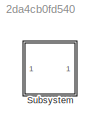
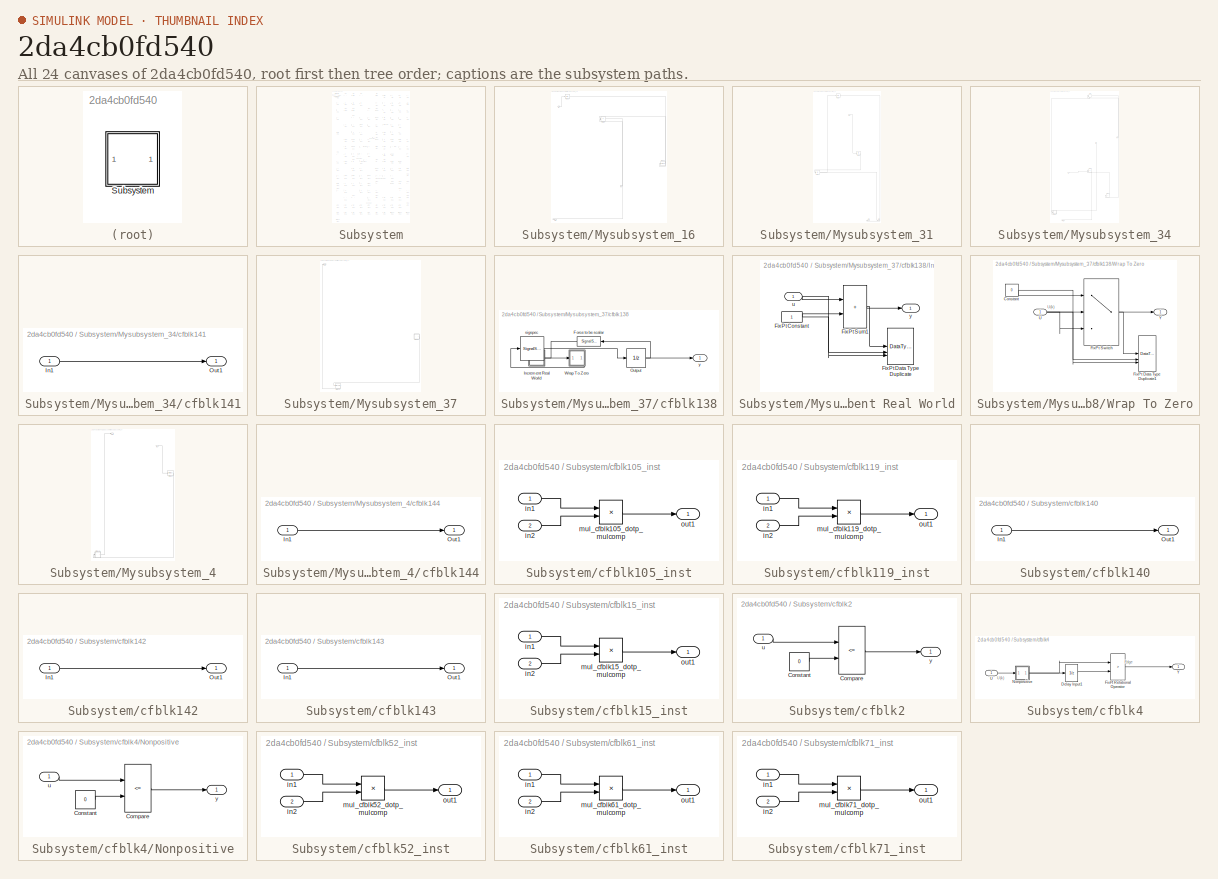
[diagram: thumbnail index - all 24 canvases of the model, root first then tree order]
MODEL slx_2da4cb0fd540
KIND model
CONFIG AbsTol = auto
CONFIG EnableMultiTasking = off
CONFIG FixedStep = auto
CONFIG MaxStep = auto
CONFIG MinStep = auto
CONFIG RelTol = 1e-3
CONFIG SampleTimeConstraint = Unconstrained
CONFIG SolverName = VariableStepAuto
CONFIG StartTime = 0.0
CONFIG StopTime = 10.0
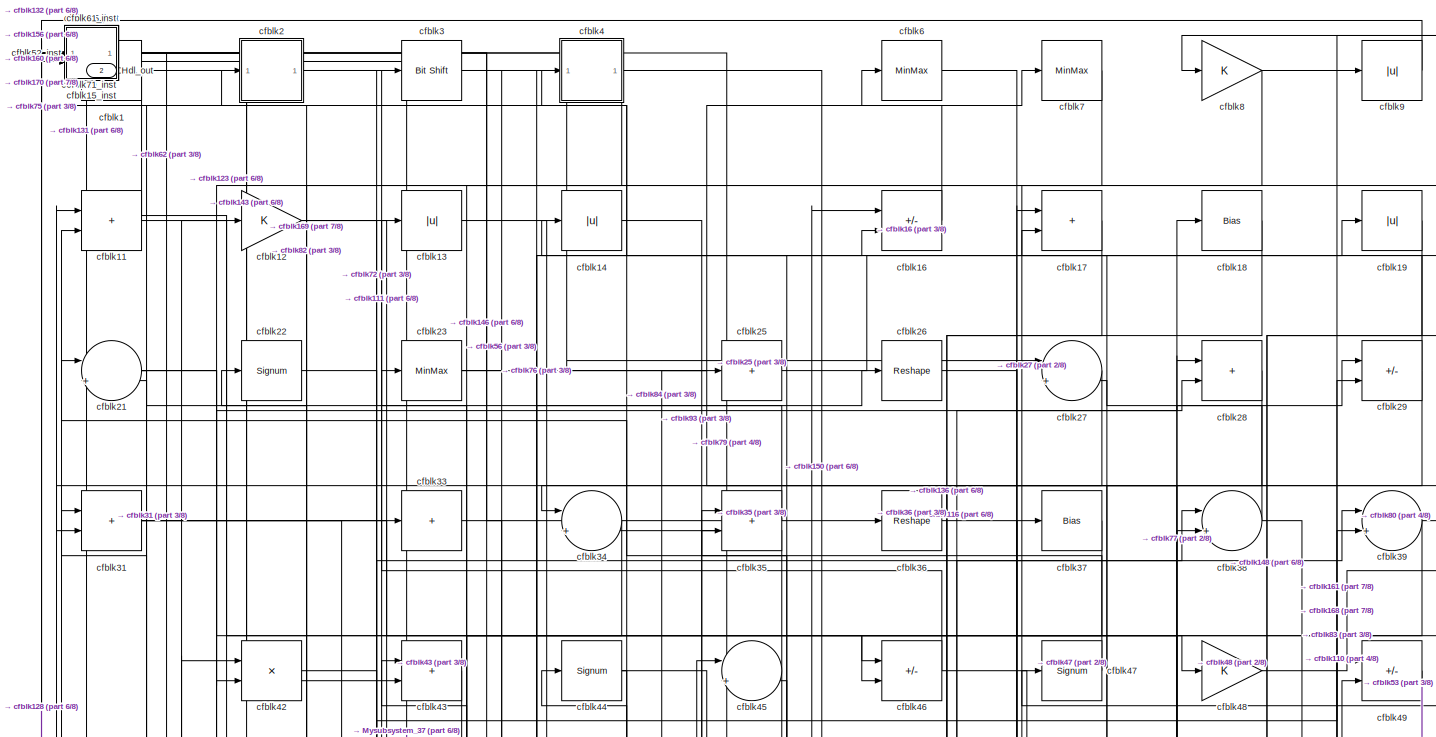
[diagram: Subsystem - part 1/8, full width, top band]
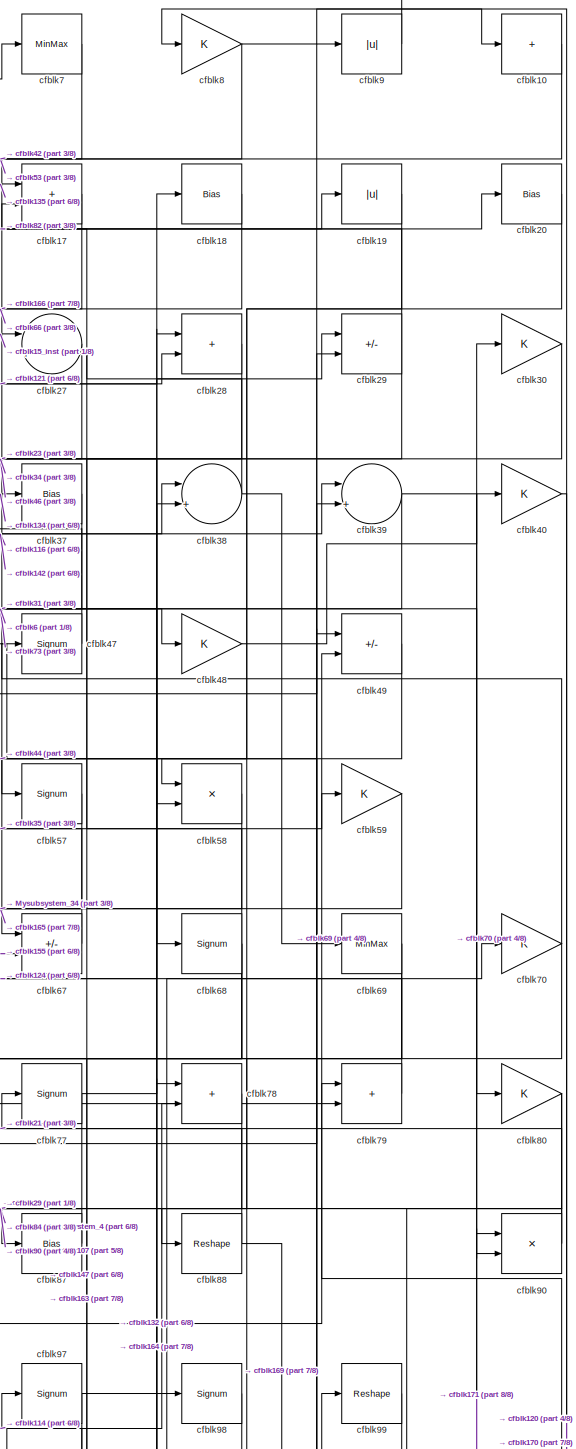
[diagram: Subsystem - part 2/8, top right region]
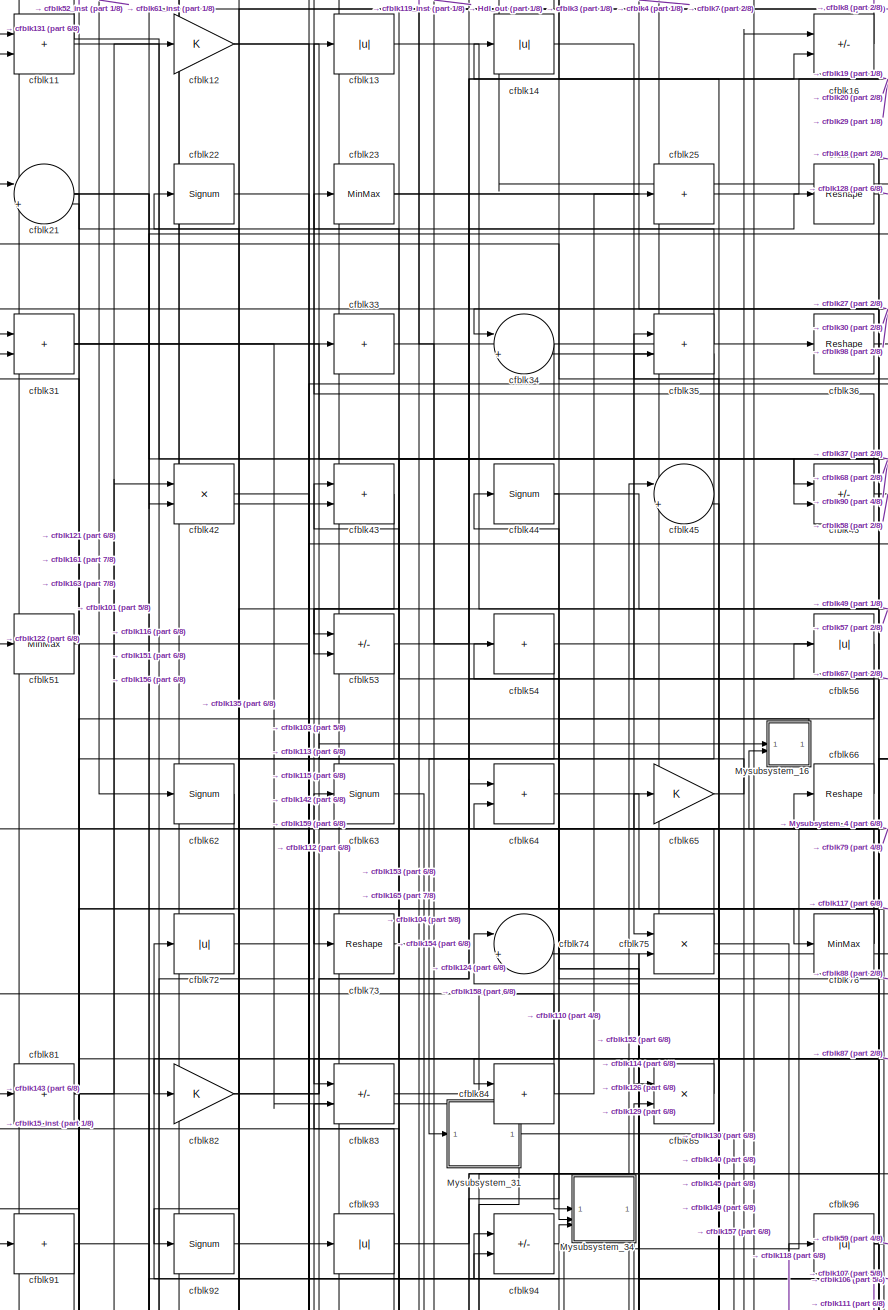
[diagram: Subsystem - part 3/8, top left region]
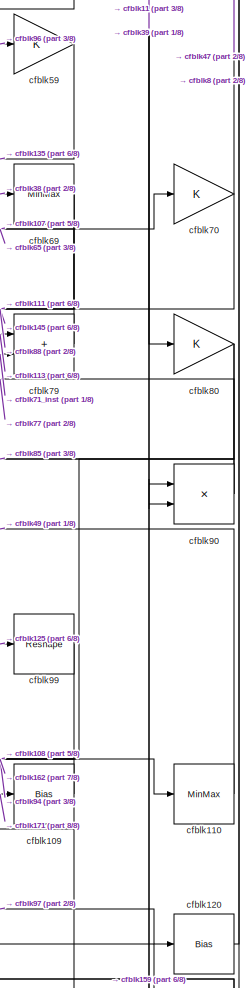
[diagram: Subsystem - part 4/8, middle right region]
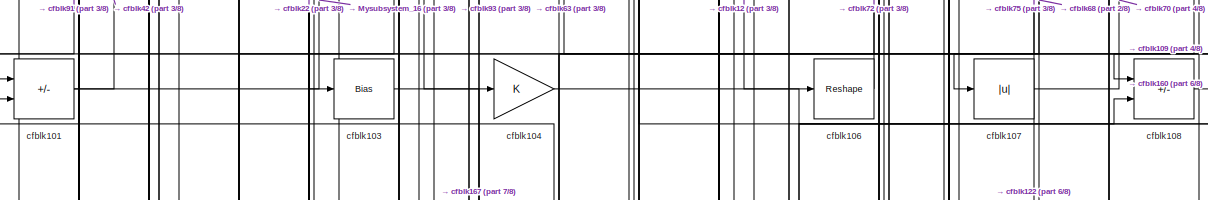
[diagram: Subsystem - part 5/8, full width, middle band]
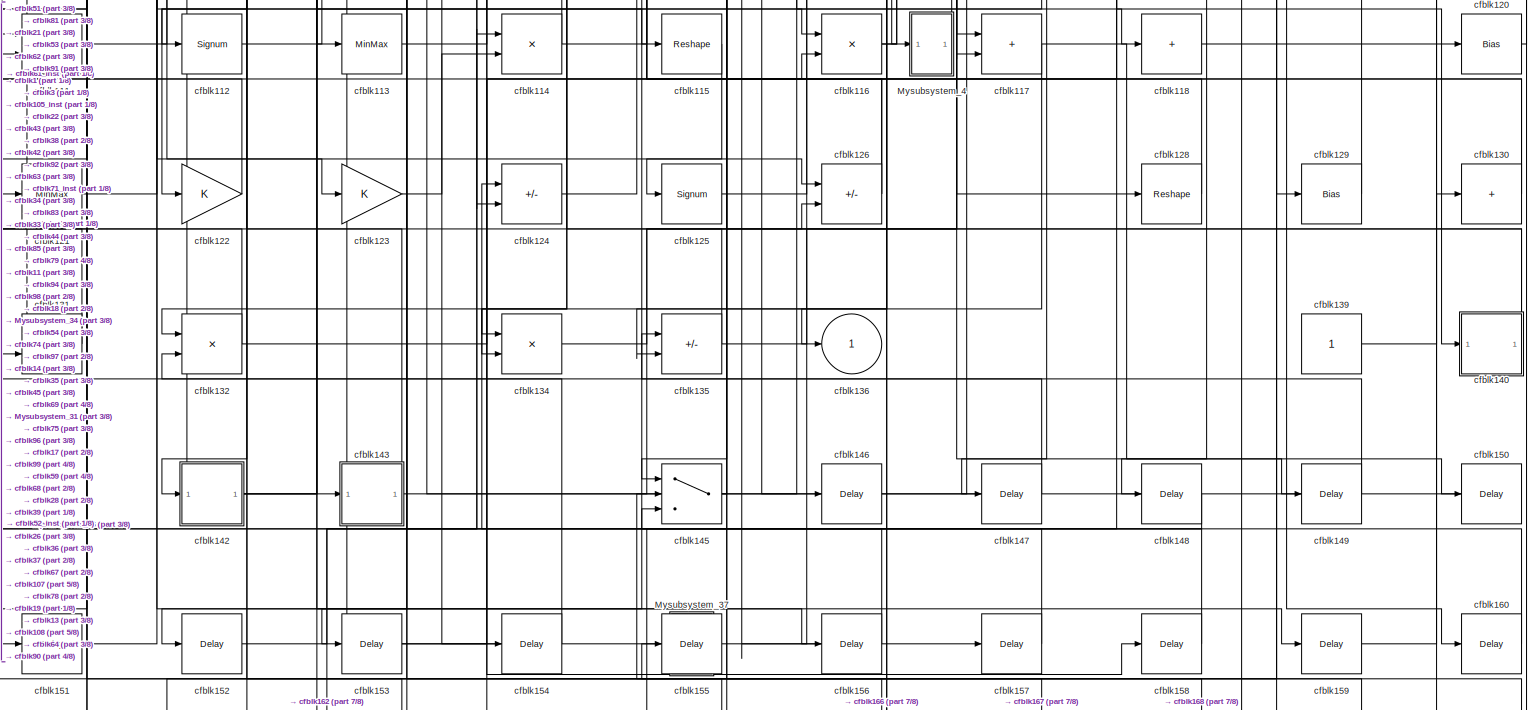
[diagram: Subsystem - part 6/8, full width, bottom band]
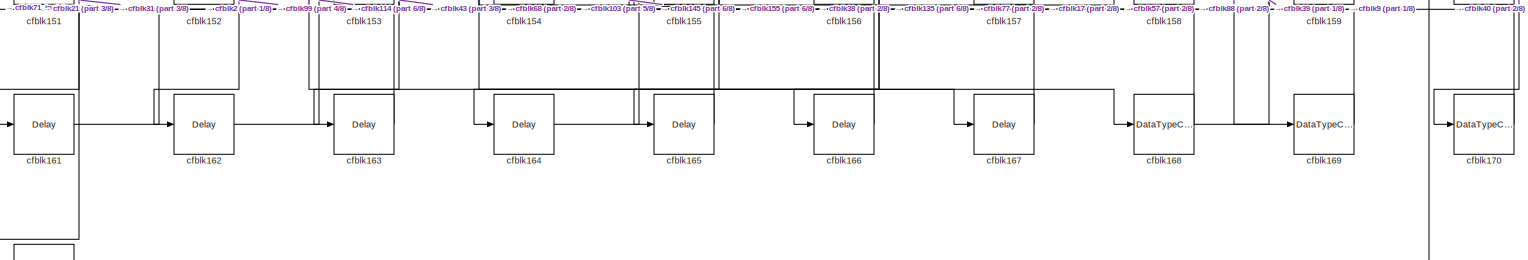
[diagram: Subsystem - part 7/8, full width, bottom band]
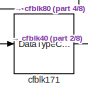
[diagram: Subsystem - part 8/8, bottom left region]
BLOCK [SubSystem] Subsystem
BLOCK [Outport] Subsystem/Hdl_out
  OutDataTypeStr = uint8
  Port = 2
  SampleTime = 1
BLOCK [SubSystem] Subsystem/Mysubsystem_16
BLOCK [Inport] Subsystem/Mysubsystem_16/In1
  OutDataTypeStr = uint8
  PortDimensions = 1
  SampleTime = 1
BLOCK [Inport] Subsystem/Mysubsystem_16/In2
  OutDataTypeStr = uint8
  Port = 2
  PortDimensions = 1
  SampleTime = 1
BLOCK [Outport] Subsystem/Mysubsystem_16/Out1
  SampleTime = 1
BLOCK [Signum] Subsystem/Mysubsystem_16/cfblk100
BLOCK [Bias] Subsystem/Mysubsystem_16/cfblk32
  Bias = 0.0
  SaturateOnIntegerOverflow = off
BLOCK [Product] Subsystem/Mysubsystem_16/cfblk55
  Inputs = */
  RndMeth = Zero
  SaturateOnIntegerOverflow = on
BLOCK [SubSystem] Subsystem/Mysubsystem_31
BLOCK [Inport] Subsystem/Mysubsystem_31/In1
  OutDataTypeStr = uint8
  PortDimensions = 1
  SampleTime = 1
BLOCK [Outport] Subsystem/Mysubsystem_31/Out2
  SampleTime = 1
BLOCK [Outport] Subsystem/Mysubsystem_31/Out3
  Port = 2
  SampleTime = 1
BLOCK [Abs] Subsystem/Mysubsystem_31/cfblk102
  SaturateOnIntegerOverflow = off
BLOCK [Bias] Subsystem/Mysubsystem_31/cfblk24
  Bias = 0.0
  SaturateOnIntegerOverflow = off
BLOCK [Abs] Subsystem/Mysubsystem_31/cfblk86
  SaturateOnIntegerOverflow = off
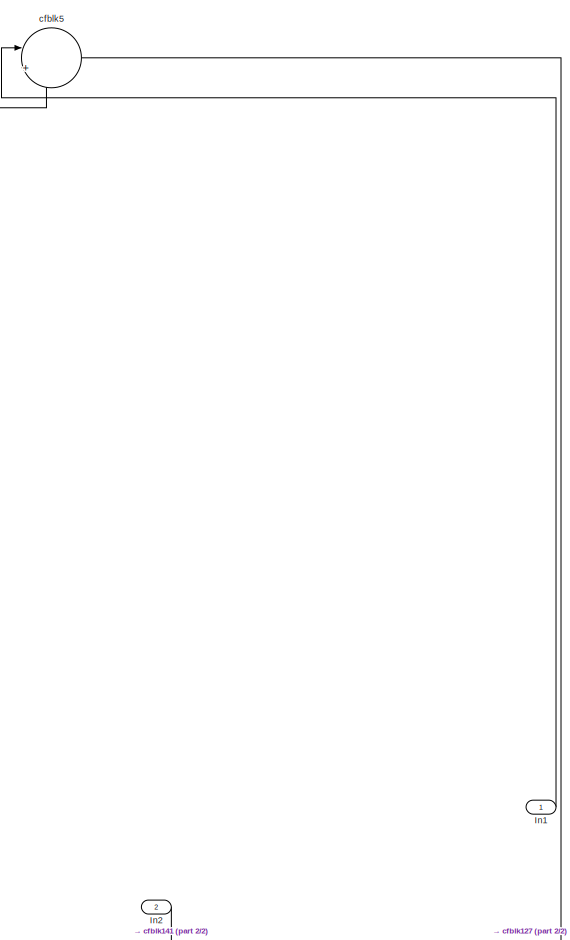
[diagram: Subsystem/Mysubsystem_34 - part 1/2, top right region]
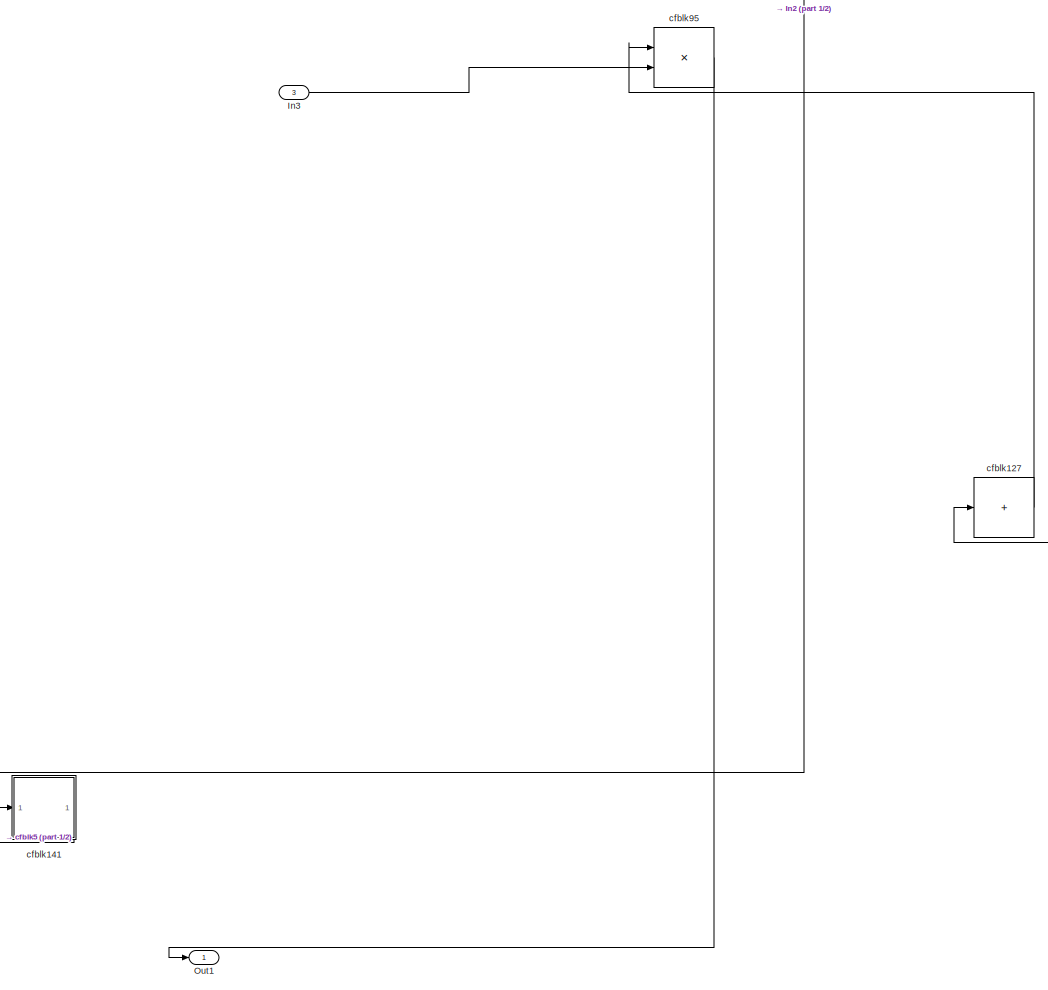
[diagram: Subsystem/Mysubsystem_34 - part 2/2, full width, bottom band]
BLOCK [SubSystem] Subsystem/Mysubsystem_34
BLOCK [Inport] Subsystem/Mysubsystem_34/In1
  OutDataTypeStr = uint8
  PortDimensions = 1
  SampleTime = 1
BLOCK [Inport] Subsystem/Mysubsystem_34/In2
  OutDataTypeStr = uint8
  Port = 2
  PortDimensions = 1
  SampleTime = 1
BLOCK [Inport] Subsystem/Mysubsystem_34/In3
  OutDataTypeStr = uint8
  Port = 3
  PortDimensions = 1
  SampleTime = 1
BLOCK [Outport] Subsystem/Mysubsystem_34/Out1
  SampleTime = 1
BLOCK [Sum] Subsystem/Mysubsystem_34/cfblk127
  IconShape = rectangular
  Inputs = +
BLOCK [SubSystem] Subsystem/Mysubsystem_34/cfblk141
BLOCK [Inport] Subsystem/Mysubsystem_34/cfblk141/In1
  OutDataTypeStr = uint8
  PortDimensions = 1
  SampleTime = 1
BLOCK [Outport] Subsystem/Mysubsystem_34/cfblk141/Out1
  SampleTime = 1
BLOCK [Sum] Subsystem/Mysubsystem_34/cfblk5
  Inputs = |++
BLOCK [Product] Subsystem/Mysubsystem_34/cfblk95
  Inputs = */
  RndMeth = Zero
  SaturateOnIntegerOverflow = on
BLOCK [SubSystem] Subsystem/Mysubsystem_37
BLOCK [Outport] Subsystem/Mysubsystem_37/Out1
  SampleTime = 1
BLOCK [SubSystem] Subsystem/Mysubsystem_37/cfblk138
BLOCK [SignalSpecification] Subsystem/Mysubsystem_37/cfblk138/Force to be scalar
  Dimensions = 1
  DisableCoverage = on
BLOCK [SubSystem] Subsystem/Mysubsystem_37/cfblk138/Increment Real World
BLOCK [Constant] Subsystem/Mysubsystem_37/cfblk138/Increment Real World/FixPt Constant
  DisableCoverage = on
  OutDataTypeStr = Inherit: Inherit via back propagation
  SampleTime = -1
BLOCK [DataTypeDuplicate] Subsystem/Mysubsystem_37/cfblk138/Increment Real World/FixPt Data Type Duplicate
  DisableCoverage = on
  NumInputPorts = 3
BLOCK [Sum] Subsystem/Mysubsystem_37/cfblk138/Increment Real World/FixPt Sum1
  IconShape = rectangular
  InputSameDT = on
  LockScale = on
  OutDataTypeStr = Inherit: Inherit via back propagation
BLOCK [Inport] Subsystem/Mysubsystem_37/cfblk138/Increment Real World/u
  OutDataTypeStr = uint16
  SampleTime = 1
BLOCK [Outport] Subsystem/Mysubsystem_37/cfblk138/Increment Real World/y
  SampleTime = 1
BLOCK [UnitDelay] Subsystem/Mysubsystem_37/cfblk138/Output
  HasFrameUpgradeWarning = on
  InitialCondition = 0.0
  SampleTime = tsamp
BLOCK [SubSystem] Subsystem/Mysubsystem_37/cfblk138/Wrap To Zero
BLOCK [Constant] Subsystem/Mysubsystem_37/cfblk138/Wrap To Zero/Constant
  DisableCoverage = on
  OutDataTypeStr = Inherit: Inherit via back propagation
  SampleTime = -1
  Value = 0
BLOCK [DataTypeDuplicate] Subsystem/Mysubsystem_37/cfblk138/Wrap To Zero/FixPt Data Type Duplicate1
  DisableCoverage = on
  NumInputPorts = 3
BLOCK [Switch] Subsystem/Mysubsystem_37/cfblk138/Wrap To Zero/FixPt Switch
  Criteria = u2 > Threshold
  InputSameDT = off
  OutDataTypeStr = Inherit: Inherit via back propagation
  SaturateOnIntegerOverflow = off
  Threshold = Threshold
  ZeroCross = off
BLOCK [Inport] Subsystem/Mysubsystem_37/cfblk138/Wrap To Zero/U
  OutDataTypeStr = uint16
  SampleTime = 1
BLOCK [Outport] Subsystem/Mysubsystem_37/cfblk138/Wrap To Zero/Y
  SampleTime = 1
BLOCK [SignalSpecification] Subsystem/Mysubsystem_37/cfblk138/sigspec
  Dimensions = 1
  OutDataTypeStr = uint16
BLOCK [Outport] Subsystem/Mysubsystem_37/cfblk138/y
  SampleTime = 1
BLOCK [DataTypeConversion] Subsystem/Mysubsystem_37/cfblk172
  OutDataTypeStr = uint8
  RndMeth = Floor
  SaturateOnIntegerOverflow = off
BLOCK [SubSystem] Subsystem/Mysubsystem_4
BLOCK [Inport] Subsystem/Mysubsystem_4/In1
  OutDataTypeStr = uint8
  PortDimensions = 1
  SampleTime = 1
BLOCK [Outport] Subsystem/Mysubsystem_4/Out1
  SampleTime = 1
BLOCK [SubSystem] Subsystem/Mysubsystem_4/cfblk144
BLOCK [Inport] Subsystem/Mysubsystem_4/cfblk144/In1
  OutDataTypeStr = uint8
  PortDimensions = 1
  SampleTime = 1
BLOCK [Outport] Subsystem/Mysubsystem_4/cfblk144/Out1
  SampleTime = 1
BLOCK [MinMax] Subsystem/Mysubsystem_4/cfblk89
BLOCK [Reference] Subsystem/cfblk1  REF=simulink/Logic and Bit
Operations/Detect
Decrease
  LibrarySourceBlock = hdlsllib/Logic and Bit\nOperations/Detect\nDecrease
  SourceBlock = simulink/Logic and Bit\nOperations/Detect\nDecrease
  SourceType = Detect Decrease
BLOCK [Sum] Subsystem/cfblk10
  IconShape = rectangular
  Inputs = +
  OutDataTypeStr = uint8
BLOCK [Sum] Subsystem/cfblk101
  IconShape = rectangular
  Inputs = +-
  OutDataTypeStr = uint8
BLOCK [Bias] Subsystem/cfblk103
  Bias = 0.0
  SaturateOnIntegerOverflow = off
BLOCK [Gain] Subsystem/cfblk104
  OutDataTypeStr = uint8
BLOCK [SubSystem] Subsystem/cfblk105_inst
BLOCK [Inport] Subsystem/cfblk105_inst/in1
  OutDataTypeStr = uint8
  SampleTime = 1
BLOCK [Inport] Subsystem/cfblk105_inst/in2
  OutDataTypeStr = uint8
  Port = 2
  SampleTime = 1
BLOCK [Product] Subsystem/cfblk105_inst/mul_cfblk105_dotp_mulcomp
  Inputs = **
  OutDataTypeStr = uint8
  SampleTime = 1
BLOCK [Outport] Subsystem/cfblk105_inst/out1
  OutDataTypeStr = uint8
  SampleTime = 1
BLOCK [Reshape] Subsystem/cfblk106
BLOCK [Abs] Subsystem/cfblk107
  OutDataTypeStr = uint8
  SaturateOnIntegerOverflow = off
BLOCK [Sum] Subsystem/cfblk108
  IconShape = rectangular
  Inputs = +-
  OutDataTypeStr = uint8
BLOCK [Bias] Subsystem/cfblk109
  Bias = 0.0
  SaturateOnIntegerOverflow = off
BLOCK [Sum] Subsystem/cfblk11
  IconShape = rectangular
  OutDataTypeStr = uint8
BLOCK [MinMax] Subsystem/cfblk110
  OutDataTypeStr = uint8
BLOCK [Product] Subsystem/cfblk111
  Inputs = */
  OutDataTypeStr = uint8
  RndMeth = Zero
  SaturateOnIntegerOverflow = on
BLOCK [Signum] Subsystem/cfblk112
BLOCK [MinMax] Subsystem/cfblk113
  OutDataTypeStr = uint8
BLOCK [Product] Subsystem/cfblk114
  Inputs = */
  OutDataTypeStr = uint8
  RndMeth = Zero
  SaturateOnIntegerOverflow = on
BLOCK [Reshape] Subsystem/cfblk115
BLOCK [Product] Subsystem/cfblk116
  Inputs = */
  OutDataTypeStr = uint8
  RndMeth = Zero
  SaturateOnIntegerOverflow = on
BLOCK [Sum] Subsystem/cfblk117
  IconShape = rectangular
  OutDataTypeStr = uint8
BLOCK [Sum] Subsystem/cfblk118
  IconShape = rectangular
  Inputs = +
  OutDataTypeStr = uint8
BLOCK [SubSystem] Subsystem/cfblk119_inst
BLOCK [Inport] Subsystem/cfblk119_inst/in1
  OutDataTypeStr = uint8
  SampleTime = 1
BLOCK [Inport] Subsystem/cfblk119_inst/in2
  OutDataTypeStr = uint8
  Port = 2
  SampleTime = 1
BLOCK [Product] Subsystem/cfblk119_inst/mul_cfblk119_dotp_mulcomp
  Inputs = **
  OutDataTypeStr = uint8
  SampleTime = 1
BLOCK [Outport] Subsystem/cfblk119_inst/out1
  OutDataTypeStr = uint8
  SampleTime = 1
BLOCK [Gain] Subsystem/cfblk12
  OutDataTypeStr = uint8
BLOCK [Bias] Subsystem/cfblk120
  Bias = 0.0
  SaturateOnIntegerOverflow = off
BLOCK [MinMax] Subsystem/cfblk121
  OutDataTypeStr = uint8
BLOCK [Gain] Subsystem/cfblk122
  OutDataTypeStr = uint8
BLOCK [Gain] Subsystem/cfblk123
  OutDataTypeStr = uint8
BLOCK [Sum] Subsystem/cfblk124
  IconShape = rectangular
  Inputs = +-
  OutDataTypeStr = uint8
BLOCK [Signum] Subsystem/cfblk125
BLOCK [Sum] Subsystem/cfblk126
  IconShape = rectangular
  Inputs = +-
  OutDataTypeStr = uint8
BLOCK [Reshape] Subsystem/cfblk128
BLOCK [Bias] Subsystem/cfblk129
  Bias = 0.0
  SaturateOnIntegerOverflow = off
BLOCK [Abs] Subsystem/cfblk13
  OutDataTypeStr = uint8
  SaturateOnIntegerOverflow = off
BLOCK [Sum] Subsystem/cfblk130
  IconShape = rectangular
  Inputs = +
  OutDataTypeStr = uint8
BLOCK [Sum] Subsystem/cfblk131
  IconShape = rectangular
  OutDataTypeStr = uint8
BLOCK [Product] Subsystem/cfblk132
  Inputs = */
  OutDataTypeStr = uint8
  RndMeth = Zero
  SaturateOnIntegerOverflow = on
BLOCK [Product] Subsystem/cfblk134
  Inputs = */
  OutDataTypeStr = uint8
  RndMeth = Zero
  SaturateOnIntegerOverflow = on
BLOCK [Sum] Subsystem/cfblk135
  IconShape = rectangular
  Inputs = +-
  OutDataTypeStr = uint8
BLOCK [Outport] Subsystem/cfblk136
  OutDataTypeStr = uint8
  SampleTime = 1
  VectorParamsAs1DForOutWhenUnconnected = off
BLOCK [Constant] Subsystem/cfblk139
  OutDataTypeStr = uint8
  SampleTime = -1
BLOCK [Abs] Subsystem/cfblk14
  OutDataTypeStr = uint8
  SaturateOnIntegerOverflow = off
BLOCK [SubSystem] Subsystem/cfblk140
BLOCK [Inport] Subsystem/cfblk140/In1
  OutDataTypeStr = uint8
  PortDimensions = 1
  SampleTime = 1
BLOCK [Outport] Subsystem/cfblk140/Out1
  SampleTime = 1
BLOCK [SubSystem] Subsystem/cfblk142
BLOCK [Inport] Subsystem/cfblk142/In1
  OutDataTypeStr = uint8
  PortDimensions = 1
  SampleTime = 1
BLOCK [Outport] Subsystem/cfblk142/Out1
  SampleTime = 1
BLOCK [SubSystem] Subsystem/cfblk143
BLOCK [Inport] Subsystem/cfblk143/In1
  OutDataTypeStr = uint8
  PortDimensions = 1
  SampleTime = 1
BLOCK [Outport] Subsystem/cfblk143/Out1
  SampleTime = 1
BLOCK [Switch] Subsystem/cfblk145
  InputSameDT = off
  OutDataTypeStr = uint8
  SaturateOnIntegerOverflow = off
BLOCK [Delay] Subsystem/cfblk146
  InputPortMap = u0
  SampleTime = 1
BLOCK [Delay] Subsystem/cfblk147
  InputPortMap = u0
  SampleTime = 1
BLOCK [Delay] Subsystem/cfblk148
  InputPortMap = u0
  SampleTime = 1
BLOCK [Delay] Subsystem/cfblk149
  InputPortMap = u0
  SampleTime = 1
BLOCK [Delay] Subsystem/cfblk150
  InputPortMap = u0
  SampleTime = 1
BLOCK [Delay] Subsystem/cfblk151
  InputPortMap = u0
  SampleTime = 1
BLOCK [Delay] Subsystem/cfblk152
  InputPortMap = u0
  SampleTime = 1
BLOCK [Delay] Subsystem/cfblk153
  InputPortMap = u0
  SampleTime = 1
BLOCK [Delay] Subsystem/cfblk154
  InputPortMap = u0
  SampleTime = 1
BLOCK [Delay] Subsystem/cfblk155
  InputPortMap = u0
  SampleTime = 1
BLOCK [Delay] Subsystem/cfblk156
  InputPortMap = u0
  SampleTime = 1
BLOCK [Delay] Subsystem/cfblk157
  InputPortMap = u0
  SampleTime = 1
BLOCK [Delay] Subsystem/cfblk158
  InputPortMap = u0
  SampleTime = 1
BLOCK [Delay] Subsystem/cfblk159
  InputPortMap = u0
  SampleTime = 1
BLOCK [SubSystem] Subsystem/cfblk15_inst
BLOCK [Inport] Subsystem/cfblk15_inst/in1
  OutDataTypeStr = uint8
  SampleTime = 1
BLOCK [Inport] Subsystem/cfblk15_inst/in2
  OutDataTypeStr = uint8
  Port = 2
  SampleTime = 1
BLOCK [Product] Subsystem/cfblk15_inst/mul_cfblk15_dotp_mulcomp
  Inputs = **
  OutDataTypeStr = uint8
  SampleTime = 1
BLOCK [Outport] Subsystem/cfblk15_inst/out1
  OutDataTypeStr = uint8
  SampleTime = 1
BLOCK [Sum] Subsystem/cfblk16
  IconShape = rectangular
  Inputs = +-
  OutDataTypeStr = uint8
BLOCK [Delay] Subsystem/cfblk160
  InputPortMap = u0
  SampleTime = 1
BLOCK [Delay] Subsystem/cfblk161
  InputPortMap = u0
  SampleTime = 1
BLOCK [Delay] Subsystem/cfblk162
  InputPortMap = u0
  SampleTime = 1
BLOCK [Delay] Subsystem/cfblk163
  InputPortMap = u0
  SampleTime = 1
BLOCK [Delay] Subsystem/cfblk164
  InputPortMap = u0
  SampleTime = 1
BLOCK [Delay] Subsystem/cfblk165
  InputPortMap = u0
  SampleTime = 1
BLOCK [Delay] Subsystem/cfblk166
  InputPortMap = u0
  SampleTime = 1
BLOCK [Delay] Subsystem/cfblk167
  InputPortMap = u0
  SampleTime = 1
BLOCK [DataTypeConversion] Subsystem/cfblk168
  OutDataTypeStr = uint8
  RndMeth = Floor
  SaturateOnIntegerOverflow = off
BLOCK [DataTypeConversion] Subsystem/cfblk169
  OutDataTypeStr = uint8
  RndMeth = Floor
  SaturateOnIntegerOverflow = off
BLOCK [Sum] Subsystem/cfblk17
  IconShape = rectangular
  OutDataTypeStr = uint8
BLOCK [DataTypeConversion] Subsystem/cfblk170
  OutDataTypeStr = uint8
  RndMeth = Floor
  SaturateOnIntegerOverflow = off
BLOCK [DataTypeConversion] Subsystem/cfblk171
  OutDataTypeStr = uint8
  RndMeth = Floor
  SaturateOnIntegerOverflow = off
BLOCK [Bias] Subsystem/cfblk18
  Bias = 0.0
  SaturateOnIntegerOverflow = off
BLOCK [Abs] Subsystem/cfblk19
  OutDataTypeStr = uint8
  SaturateOnIntegerOverflow = off
BLOCK [SubSystem] Subsystem/cfblk2
BLOCK [RelationalOperator] Subsystem/cfblk2/Compare
  Operator = <=
  OutDataTypeStr = fixdt(0, 8)
BLOCK [Constant] Subsystem/cfblk2/Constant
  DisableCoverage = on
  OutDataTypeStr = Inherit: Inherit via back propagation
  PreserveConstantTs = on
  SampleTime = -1
  Value = 0
BLOCK [Inport] Subsystem/cfblk2/u
  OutDataTypeStr = uint8
  SampleTime = 1
BLOCK [Outport] Subsystem/cfblk2/y
  SampleTime = 1
BLOCK [Bias] Subsystem/cfblk20
  Bias = 0.0
  SaturateOnIntegerOverflow = off
BLOCK [Sum] Subsystem/cfblk21
  Inputs = |++
  OutDataTypeStr = uint8
BLOCK [Signum] Subsystem/cfblk22
BLOCK [MinMax] Subsystem/cfblk23
  OutDataTypeStr = uint8
BLOCK [Sum] Subsystem/cfblk25
  IconShape = rectangular
  Inputs = +
  OutDataTypeStr = uint8
BLOCK [Reshape] Subsystem/cfblk26
BLOCK [Sum] Subsystem/cfblk27
  Inputs = |++
  OutDataTypeStr = uint8
BLOCK [Sum] Subsystem/cfblk28
  IconShape = rectangular
  OutDataTypeStr = uint8
BLOCK [Sum] Subsystem/cfblk29
  IconShape = rectangular
  Inputs = +-
  OutDataTypeStr = uint8
BLOCK [Reference] Subsystem/cfblk3  REF=hdlsllib/Logic and Bit
Operations/Bit Shift
  SourceBlock = hdlsllib/Logic and Bit\nOperations/Bit Shift
  SourceType = Bit Shift
BLOCK [Gain] Subsystem/cfblk30
  OutDataTypeStr = uint8
BLOCK [Sum] Subsystem/cfblk31
  IconShape = rectangular
  OutDataTypeStr = uint8
BLOCK [Sum] Subsystem/cfblk33
  IconShape = rectangular
  Inputs = +
  OutDataTypeStr = uint8
BLOCK [Sum] Subsystem/cfblk34
  Inputs = |++
  OutDataTypeStr = uint8
BLOCK [Sum] Subsystem/cfblk35
  IconShape = rectangular
  OutDataTypeStr = uint8
BLOCK [Reshape] Subsystem/cfblk36
BLOCK [Bias] Subsystem/cfblk37
  Bias = 0.0
  SaturateOnIntegerOverflow = off
BLOCK [Sum] Subsystem/cfblk38
  Inputs = |++
  OutDataTypeStr = uint8
BLOCK [Sum] Subsystem/cfblk39
  Inputs = |++
  OutDataTypeStr = uint8
BLOCK [SubSystem] Subsystem/cfblk4
BLOCK [UnitDelay] Subsystem/cfblk4/Delay Input1
  Description = Store in Global RAM
  DisableCoverage = on
  HasFrameUpgradeWarning = on
  InitialCondition = vinit
  SampleTime = -1
BLOCK [RelationalOperator] Subsystem/cfblk4/FixPt Relational Operator
  InputSameDT = off
  Operator = >
  OutDataTypeStr = fixdt(0, 8)
  ZeroCross = off
BLOCK [SubSystem] Subsystem/cfblk4/Nonpositive
BLOCK [RelationalOperator] Subsystem/cfblk4/Nonpositive/Compare
  Operator = <=
  OutDataTypeStr = boolean
  ZeroCross = off
BLOCK [Constant] Subsystem/cfblk4/Nonpositive/Constant
  DisableCoverage = on
  OutDataTypeStr = Inherit: Inherit via back propagation
  PreserveConstantTs = on
  SampleTime = -1
  Value = 0
BLOCK [Inport] Subsystem/cfblk4/Nonpositive/u
  OutDataTypeStr = uint8
  SampleTime = 1
BLOCK [Outport] Subsystem/cfblk4/Nonpositive/y
  SampleTime = 1
BLOCK [Inport] Subsystem/cfblk4/U
  OutDataTypeStr = uint8
  SampleTime = 1
BLOCK [Outport] Subsystem/cfblk4/Y
  SampleTime = 1
BLOCK [Gain] Subsystem/cfblk40
  OutDataTypeStr = uint8
BLOCK [Product] Subsystem/cfblk42
  Inputs = */
  OutDataTypeStr = uint8
  RndMeth = Zero
  SaturateOnIntegerOverflow = on
BLOCK [Sum] Subsystem/cfblk43
  IconShape = rectangular
  OutDataTypeStr = uint8
BLOCK [Signum] Subsystem/cfblk44
BLOCK [Sum] Subsystem/cfblk45
  Inputs = |++
  OutDataTypeStr = uint8
BLOCK [Sum] Subsystem/cfblk46
  IconShape = rectangular
  Inputs = +-
  OutDataTypeStr = uint8
BLOCK [Signum] Subsystem/cfblk47
BLOCK [Gain] Subsystem/cfblk48
  OutDataTypeStr = uint8
BLOCK [Sum] Subsystem/cfblk49
  IconShape = rectangular
  Inputs = +-
  OutDataTypeStr = uint8
BLOCK [MinMax] Subsystem/cfblk51
  OutDataTypeStr = uint8
BLOCK [SubSystem] Subsystem/cfblk52_inst
BLOCK [Inport] Subsystem/cfblk52_inst/in1
  OutDataTypeStr = uint8
  SampleTime = 1
BLOCK [Inport] Subsystem/cfblk52_inst/in2
  OutDataTypeStr = uint8
  Port = 2
  SampleTime = 1
BLOCK [Product] Subsystem/cfblk52_inst/mul_cfblk52_dotp_mulcomp
  Inputs = **
  OutDataTypeStr = uint8
  SampleTime = 1
BLOCK [Outport] Subsystem/cfblk52_inst/out1
  OutDataTypeStr = uint8
  SampleTime = 1
BLOCK [Sum] Subsystem/cfblk53
  IconShape = rectangular
  Inputs = +-
  OutDataTypeStr = uint8
BLOCK [Sum] Subsystem/cfblk54
  IconShape = rectangular
  Inputs = +
  OutDataTypeStr = uint8
BLOCK [Abs] Subsystem/cfblk56
  OutDataTypeStr = uint8
  SaturateOnIntegerOverflow = off
BLOCK [Signum] Subsystem/cfblk57
BLOCK [Product] Subsystem/cfblk58
  Inputs = */
  OutDataTypeStr = uint8
  RndMeth = Zero
  SaturateOnIntegerOverflow = on
BLOCK [Gain] Subsystem/cfblk59
  OutDataTypeStr = uint8
BLOCK [MinMax] Subsystem/cfblk6
  OutDataTypeStr = uint8
BLOCK [SubSystem] Subsystem/cfblk61_inst
BLOCK [Inport] Subsystem/cfblk61_inst/in1
  OutDataTypeStr = uint8
  SampleTime = 1
BLOCK [Inport] Subsystem/cfblk61_inst/in2
  OutDataTypeStr = uint8
  Port = 2
  SampleTime = 1
BLOCK [Product] Subsystem/cfblk61_inst/mul_cfblk61_dotp_mulcomp
  Inputs = **
  OutDataTypeStr = uint8
  SampleTime = 1
BLOCK [Outport] Subsystem/cfblk61_inst/out1
  OutDataTypeStr = uint8
  SampleTime = 1
BLOCK [Signum] Subsystem/cfblk62
BLOCK [Signum] Subsystem/cfblk63
BLOCK [Sum] Subsystem/cfblk64
  IconShape = rectangular
  OutDataTypeStr = uint8
BLOCK [Gain] Subsystem/cfblk65
  OutDataTypeStr = uint8
BLOCK [Reshape] Subsystem/cfblk66
BLOCK [Sum] Subsystem/cfblk67
  IconShape = rectangular
  Inputs = +-
  OutDataTypeStr = uint8
BLOCK [Signum] Subsystem/cfblk68
BLOCK [MinMax] Subsystem/cfblk69
  OutDataTypeStr = uint8
BLOCK [MinMax] Subsystem/cfblk7
  OutDataTypeStr = uint8
BLOCK [Gain] Subsystem/cfblk70
  OutDataTypeStr = uint8
BLOCK [SubSystem] Subsystem/cfblk71_inst
BLOCK [Inport] Subsystem/cfblk71_inst/in1
  OutDataTypeStr = uint8
  SampleTime = 1
BLOCK [Inport] Subsystem/cfblk71_inst/in2
  OutDataTypeStr = uint8
  Port = 2
  SampleTime = 1
BLOCK [Product] Subsystem/cfblk71_inst/mul_cfblk71_dotp_mulcomp
  Inputs = **
  OutDataTypeStr = uint8
  SampleTime = 1
BLOCK [Outport] Subsystem/cfblk71_inst/out1
  OutDataTypeStr = uint8
  SampleTime = 1
BLOCK [Abs] Subsystem/cfblk72
  OutDataTypeStr = uint8
  SaturateOnIntegerOverflow = off
BLOCK [Reshape] Subsystem/cfblk73
BLOCK [Sum] Subsystem/cfblk74
  Inputs = |++
  OutDataTypeStr = uint8
BLOCK [Product] Subsystem/cfblk75
  Inputs = */
  OutDataTypeStr = uint8
  RndMeth = Zero
  SaturateOnIntegerOverflow = on
BLOCK [MinMax] Subsystem/cfblk76
  OutDataTypeStr = uint8
BLOCK [Signum] Subsystem/cfblk77
BLOCK [Sum] Subsystem/cfblk78
  IconShape = rectangular
  OutDataTypeStr = uint8
BLOCK [Sum] Subsystem/cfblk79
  IconShape = rectangular
  OutDataTypeStr = uint8
BLOCK [Gain] Subsystem/cfblk8
  OutDataTypeStr = uint8
BLOCK [Gain] Subsystem/cfblk80
  OutDataTypeStr = uint8
BLOCK [Sum] Subsystem/cfblk81
  IconShape = rectangular
  Inputs = +
  OutDataTypeStr = uint8
BLOCK [Gain] Subsystem/cfblk82
  OutDataTypeStr = uint8
BLOCK [Sum] Subsystem/cfblk83
  IconShape = rectangular
  Inputs = +-
  OutDataTypeStr = uint8
BLOCK [Sum] Subsystem/cfblk84
  IconShape = rectangular
  OutDataTypeStr = uint8
BLOCK [Product] Subsystem/cfblk85
  Inputs = */
  OutDataTypeStr = uint8
  RndMeth = Zero
  SaturateOnIntegerOverflow = on
BLOCK [Bias] Subsystem/cfblk87
  Bias = 0.0
  SaturateOnIntegerOverflow = off
BLOCK [Reshape] Subsystem/cfblk88
BLOCK [Abs] Subsystem/cfblk9
  OutDataTypeStr = uint8
  SaturateOnIntegerOverflow = off
BLOCK [Product] Subsystem/cfblk90
  Inputs = */
  OutDataTypeStr = uint8
  RndMeth = Zero
  SaturateOnIntegerOverflow = on
BLOCK [Sum] Subsystem/cfblk91
  IconShape = rectangular
  Inputs = +
  OutDataTypeStr = uint8
BLOCK [Signum] Subsystem/cfblk92
BLOCK [Abs] Subsystem/cfblk93
  OutDataTypeStr = uint8
  SaturateOnIntegerOverflow = off
BLOCK [Sum] Subsystem/cfblk94
  IconShape = rectangular
  Inputs = +-
  OutDataTypeStr = uint8
BLOCK [Abs] Subsystem/cfblk96
  OutDataTypeStr = uint8
  SaturateOnIntegerOverflow = off
BLOCK [Signum] Subsystem/cfblk97
BLOCK [Signum] Subsystem/cfblk98
BLOCK [Reshape] Subsystem/cfblk99
ANNOTATION Subsystem/Mysubsystem_37/cfblk138/Wrap To Zero: U(k)
ANNOTATION Subsystem/cfblk4: Edge
ANNOTATION Subsystem/cfblk4: U(k)
LINE Subsystem/Mysubsystem_16/In1:1 -> Subsystem/Mysubsystem_16/cfblk32:1
LINE Subsystem/Mysubsystem_16/In2:1 -> Subsystem/Mysubsystem_16/cfblk55:2
LINE Subsystem/Mysubsystem_16/cfblk100:1 -> Subsystem/Mysubsystem_16/cfblk55:1
LINE Subsystem/Mysubsystem_16/cfblk32:1 -> Subsystem/Mysubsystem_16/cfblk100:1
LINE Subsystem/Mysubsystem_16/cfblk55:1 -> Subsystem/Mysubsystem_16/Out1:1
LINE Subsystem/Mysubsystem_16:1 -> Subsystem/Mysubsystem_34:2
LINE Subsystem/Mysubsystem_31/In1:1 -> Subsystem/Mysubsystem_31/cfblk86:1
NET Subsystem/Mysubsystem_31/cfblk102:1 -> Subsystem/Mysubsystem_31/Out3:1, Subsystem/Mysubsystem_31/cfblk24:1
LINE Subsystem/Mysubsystem_31/cfblk24:1 -> Subsystem/Mysubsystem_31/Out2:1
LINE Subsystem/Mysubsystem_31/cfblk86:1 -> Subsystem/Mysubsystem_31/cfblk102:1
LINE Subsystem/Mysubsystem_31:1 -> Subsystem/cfblk157:1
LINE Subsystem/Mysubsystem_31:2 -> Subsystem/cfblk158:1
LINE Subsystem/Mysubsystem_34/In1:1 -> Subsystem/Mysubsystem_34/cfblk5:1
LINE Subsystem/Mysubsystem_34/In2:1 -> Subsystem/Mysubsystem_34/cfblk141:1
LINE Subsystem/Mysubsystem_34/In3:1 -> Subsystem/Mysubsystem_34/cfblk95:2
LINE Subsystem/Mysubsystem_34/cfblk127:1 -> Subsystem/Mysubsystem_34/cfblk95:1
LINE Subsystem/Mysubsystem_34/cfblk141/In1:1 -> Subsystem/Mysubsystem_34/cfblk141/Out1:1
LINE Subsystem/Mysubsystem_34/cfblk141:1 -> Subsystem/Mysubsystem_34/cfblk5:2
LINE Subsystem/Mysubsystem_34/cfblk5:1 -> Subsystem/Mysubsystem_34/cfblk127:1
LINE Subsystem/Mysubsystem_34/cfblk95:1 -> Subsystem/Mysubsystem_34/Out1:1
LINE Subsystem/Mysubsystem_34:1 -> Subsystem/cfblk152:1
LINE Subsystem/Mysubsystem_37/cfblk138:1 -> Subsystem/Mysubsystem_37/cfblk172:1
LINE Subsystem/Mysubsystem_37/cfblk172:1 -> Subsystem/Mysubsystem_37/Out1:1
LINE Subsystem/Mysubsystem_37:1 -> Subsystem/cfblk71_inst:2
LINE Subsystem/Mysubsystem_4/In1:1 -> Subsystem/Mysubsystem_4/cfblk89:1
LINE Subsystem/Mysubsystem_4/cfblk144/In1:1 -> Subsystem/Mysubsystem_4/cfblk144/Out1:1
LINE Subsystem/Mysubsystem_4/cfblk144:1 -> Subsystem/Mysubsystem_4/Out1:1
LINE Subsystem/Mysubsystem_4/cfblk89:1 -> Subsystem/Mysubsystem_4/cfblk144:1
LINE Subsystem/Mysubsystem_4:1 -> Subsystem/Mysubsystem_16:2
NET Subsystem/cfblk101:1 -> Subsystem/Mysubsystem_16:1, Subsystem/cfblk42:1
LINE Subsystem/cfblk103:1 -> Subsystem/cfblk167:1
LINE Subsystem/cfblk104:1 -> Subsystem/cfblk108:2
LINE Subsystem/cfblk105_inst/in1:1 -> Subsystem/cfblk105_inst/mul_cfblk105_dotp_mulcomp:1
LINE Subsystem/cfblk105_inst/in2:1 -> Subsystem/cfblk105_inst/mul_cfblk105_dotp_mulcomp:2
LINE Subsystem/cfblk105_inst/mul_cfblk105_dotp_mulcomp:1 -> Subsystem/cfblk105_inst/out1:1
LINE Subsystem/cfblk105_inst:1 -> Subsystem/cfblk143:1
LINE Subsystem/cfblk106:1 -> Subsystem/cfblk72:1
NET Subsystem/cfblk107:1 -> Subsystem/cfblk122:1, Subsystem/cfblk70:1, Subsystem/cfblk75:2
LINE Subsystem/cfblk108:1 -> Subsystem/cfblk160:1
LINE Subsystem/cfblk109:1 -> Subsystem/cfblk108:1
LINE Subsystem/cfblk10:1 -> Subsystem/cfblk67:1
LINE Subsystem/cfblk110:1 -> Subsystem/cfblk49:2
LINE Subsystem/cfblk111:1 -> Subsystem/cfblk3:1
LINE Subsystem/cfblk112:1 -> Subsystem/cfblk63:1
LINE Subsystem/cfblk113:1 -> Subsystem/cfblk79:1
NET Subsystem/cfblk114:1 -> Subsystem/cfblk11:2, Subsystem/cfblk97:1
LINE Subsystem/cfblk115:1 -> Subsystem/cfblk125:1
NET Subsystem/cfblk116:1 -> Subsystem/cfblk28:2, Subsystem/cfblk39:1
NET Subsystem/cfblk117:1 -> Subsystem/cfblk132:1, Subsystem/cfblk150:1
LINE Subsystem/cfblk118:1 -> Subsystem/cfblk140:1
LINE Subsystem/cfblk119_inst/in1:1 -> Subsystem/cfblk119_inst/mul_cfblk119_dotp_mulcomp:1
LINE Subsystem/cfblk119_inst/in2:1 -> Subsystem/cfblk119_inst/mul_cfblk119_dotp_mulcomp:2
LINE Subsystem/cfblk119_inst/mul_cfblk119_dotp_mulcomp:1 -> Subsystem/cfblk119_inst/out1:1
LINE Subsystem/cfblk119_inst:1 -> Subsystem/cfblk36:1
LINE Subsystem/cfblk11:1 -> Subsystem/cfblk90:2
LINE Subsystem/cfblk120:1 -> Subsystem/cfblk8:1
LINE Subsystem/cfblk121:1 -> Subsystem/cfblk28:1
LINE Subsystem/cfblk122:1 -> Subsystem/cfblk51:1
LINE Subsystem/cfblk123:1 -> Subsystem/cfblk114:2
LINE Subsystem/cfblk124:1 -> Subsystem/cfblk18:1
LINE Subsystem/cfblk125:1 -> Subsystem/cfblk99:1
NET Subsystem/cfblk126:1 -> Subsystem/cfblk54:1, Subsystem/cfblk74:1
LINE Subsystem/cfblk128:1 -> Subsystem/cfblk61_inst:1
LINE Subsystem/cfblk129:1 -> Subsystem/cfblk64:2
NET Subsystem/cfblk12:1 -> Subsystem/cfblk106:1, Subsystem/cfblk93:1
NET Subsystem/cfblk130:1 -> Subsystem/cfblk45:2, Subsystem/cfblk74:2
LINE Subsystem/cfblk131:1 -> Subsystem/cfblk11:1
NET Subsystem/cfblk132:1 -> Subsystem/cfblk119_inst:1, Subsystem/cfblk78:1
LINE Subsystem/cfblk134:1 -> Subsystem/cfblk37:1
NET Subsystem/cfblk135:1 -> Subsystem/cfblk17:1, Subsystem/cfblk22:1
LINE Subsystem/cfblk139:1 -> Subsystem/cfblk130:1
LINE Subsystem/cfblk13:1 -> Subsystem/cfblk129:1
LINE Subsystem/cfblk140/In1:1 -> Subsystem/cfblk140/Out1:1
NET Subsystem/cfblk140:1 -> Subsystem/cfblk64:1, Subsystem/cfblk94:1
LINE Subsystem/cfblk142/In1:1 -> Subsystem/cfblk142/Out1:1
NET Subsystem/cfblk142:1 -> Subsystem/Mysubsystem_34:3, Subsystem/cfblk38:1
LINE Subsystem/cfblk143/In1:1 -> Subsystem/cfblk143/Out1:1
NET Subsystem/cfblk143:1 -> Subsystem/cfblk126:2, Subsystem/cfblk81:1
NET Subsystem/cfblk145:1 -> Subsystem/cfblk14:1, Subsystem/cfblk96:1
LINE Subsystem/cfblk146:1 -> Subsystem/cfblk78:2
LINE Subsystem/cfblk147:1 -> Subsystem/cfblk132:2
LINE Subsystem/cfblk148:1 -> Subsystem/cfblk145:3
LINE Subsystem/cfblk149:1 -> Subsystem/cfblk35:1
LINE Subsystem/cfblk14:1 -> Subsystem/cfblk75:1
LINE Subsystem/cfblk150:1 -> Subsystem/cfblk1:1
LINE Subsystem/cfblk151:1 -> Subsystem/cfblk94:2
LINE Subsystem/cfblk152:1 -> Subsystem/cfblk85:2
LINE Subsystem/cfblk153:1 -> Subsystem/cfblk116:2
LINE Subsystem/cfblk154:1 -> Subsystem/cfblk131:2
LINE Subsystem/cfblk155:1 -> Subsystem/cfblk67:2
LINE Subsystem/cfblk156:1 -> Subsystem/cfblk105_inst:2
LINE Subsystem/cfblk157:1 -> Subsystem/cfblk124:1
LINE Subsystem/cfblk158:1 -> Subsystem/cfblk83:2
LINE Subsystem/cfblk159:1 -> Subsystem/cfblk90:1
LINE Subsystem/cfblk15_inst/in1:1 -> Subsystem/cfblk15_inst/mul_cfblk15_dotp_mulcomp:1
LINE Subsystem/cfblk15_inst/in2:1 -> Subsystem/cfblk15_inst/mul_cfblk15_dotp_mulcomp:2
LINE Subsystem/cfblk15_inst/mul_cfblk15_dotp_mulcomp:1 -> Subsystem/cfblk15_inst/out1:1
LINE Subsystem/cfblk15_inst:1 -> Subsystem/cfblk27:1
LINE Subsystem/cfblk160:1 -> Subsystem/cfblk52_inst:2
LINE Subsystem/cfblk161:1 -> Subsystem/cfblk39:2
LINE Subsystem/cfblk162:1 -> Subsystem/cfblk114:1
LINE Subsystem/cfblk163:1 -> Subsystem/cfblk31:1
LINE Subsystem/cfblk164:1 -> Subsystem/cfblk38:2
LINE Subsystem/cfblk165:1 -> Subsystem/cfblk43:1
LINE Subsystem/cfblk166:1 -> Subsystem/cfblk135:1
LINE Subsystem/cfblk167:1 -> Subsystem/cfblk145:2
NET Subsystem/cfblk168:1 -> Subsystem/cfblk155:1, Subsystem/cfblk9:1
LINE Subsystem/cfblk169:1 -> Subsystem/cfblk2:1
LINE Subsystem/cfblk16:1 -> Subsystem/cfblk6:1
LINE Subsystem/cfblk170:1 -> Subsystem/cfblk71_inst:1
LINE Subsystem/cfblk171:1 -> Subsystem/cfblk40:1
LINE Subsystem/cfblk17:1 -> Subsystem/cfblk166:1
LINE Subsystem/cfblk18:1 -> Subsystem/cfblk66:1
LINE Subsystem/cfblk19:1 -> Subsystem/cfblk148:1
LINE Subsystem/cfblk1:1 -> Subsystem/cfblk123:1
LINE Subsystem/cfblk20:1 -> Subsystem/cfblk58:1
NET Subsystem/cfblk21:1 -> Subsystem/cfblk126:1, Subsystem/cfblk161:1, Subsystem/cfblk46:2
LINE Subsystem/cfblk22:1 -> Subsystem/cfblk103:1
NET Subsystem/cfblk23:1 -> Subsystem/cfblk7:1, Subsystem/cfblk98:1
LINE Subsystem/cfblk25:1 -> Subsystem/cfblk19:1
LINE Subsystem/cfblk26:1 -> Subsystem/cfblk128:1
LINE Subsystem/cfblk27:1 -> Subsystem/cfblk46:1
LINE Subsystem/cfblk28:1 -> Subsystem/cfblk147:1
NET Subsystem/cfblk29:1 -> Subsystem/cfblk31:2, Subsystem/cfblk4:1
LINE Subsystem/cfblk2:1 -> Subsystem/cfblk168:1
LINE Subsystem/cfblk30:1 -> Subsystem/cfblk34:1
NET Subsystem/cfblk31:1 -> Subsystem/cfblk13:1, Subsystem/cfblk68:1, Subsystem/cfblk84:2
LINE Subsystem/cfblk33:1 -> Subsystem/cfblk154:1
LINE Subsystem/cfblk34:1 -> Subsystem/cfblk153:1
LINE Subsystem/cfblk35:1 -> Subsystem/cfblk52_inst:1
LINE Subsystem/cfblk36:1 -> Subsystem/cfblk149:1
LINE Subsystem/cfblk37:1 -> Subsystem/cfblk73:1
NET Subsystem/cfblk38:1 -> Subsystem/cfblk17:2, Subsystem/cfblk69:1
NET Subsystem/cfblk39:1 -> Subsystem/cfblk136:1, Subsystem/cfblk80:1
LINE Subsystem/cfblk3:1 -> Subsystem/cfblk76:1
LINE Subsystem/cfblk40:1 -> Subsystem/cfblk170:1
LINE Subsystem/cfblk42:1 -> Subsystem/cfblk113:1
LINE Subsystem/cfblk43:1 -> Subsystem/cfblk142:1
NET Subsystem/cfblk44:1 -> Subsystem/cfblk124:2, Subsystem/cfblk57:1
NET Subsystem/cfblk45:1 -> Subsystem/Mysubsystem_31:1, Subsystem/cfblk34:2
NET Subsystem/cfblk46:1 -> Subsystem/cfblk33:1, Subsystem/cfblk58:2
LINE Subsystem/cfblk47:1 -> Subsystem/cfblk15_inst:1
LINE Subsystem/cfblk48:1 -> Subsystem/cfblk30:1
LINE Subsystem/cfblk49:1 -> Subsystem/cfblk53:2
LINE Subsystem/cfblk4:1 -> Subsystem/cfblk82:1
LINE Subsystem/cfblk51:1 -> Subsystem/cfblk115:1
LINE Subsystem/cfblk52_inst/in1:1 -> Subsystem/cfblk52_inst/mul_cfblk52_dotp_mulcomp:1
LINE Subsystem/cfblk52_inst/in2:1 -> Subsystem/cfblk52_inst/mul_cfblk52_dotp_mulcomp:2
LINE Subsystem/cfblk52_inst/mul_cfblk52_dotp_mulcomp:1 -> Subsystem/cfblk52_inst/out1:1
LINE Subsystem/cfblk52_inst:1 -> Subsystem/cfblk43:2
NET Subsystem/cfblk53:1 -> Subsystem/cfblk151:1, Subsystem/cfblk26:1
LINE Subsystem/cfblk54:1 -> Subsystem/cfblk92:1
NET Subsystem/cfblk56:1 -> Subsystem/Hdl_out:1, Subsystem/cfblk91:1
LINE Subsystem/cfblk57:1 -> Subsystem/cfblk165:1
LINE Subsystem/cfblk58:1 -> Subsystem/Mysubsystem_34:1
LINE Subsystem/cfblk59:1 -> Subsystem/cfblk135:2
LINE Subsystem/cfblk61_inst/in1:1 -> Subsystem/cfblk61_inst/mul_cfblk61_dotp_mulcomp:1
LINE Subsystem/cfblk61_inst/in2:1 -> Subsystem/cfblk61_inst/mul_cfblk61_dotp_mulcomp:2
LINE Subsystem/cfblk61_inst/mul_cfblk61_dotp_mulcomp:1 -> Subsystem/cfblk61_inst/out1:1
NET Subsystem/cfblk61_inst:1 -> Subsystem/cfblk146:1, Subsystem/cfblk62:1
LINE Subsystem/cfblk62:1 -> Subsystem/cfblk121:1
LINE Subsystem/cfblk63:1 -> Subsystem/cfblk104:1
LINE Subsystem/cfblk64:1 -> Subsystem/cfblk117:1
LINE Subsystem/cfblk65:1 -> Subsystem/cfblk16:1
LINE Subsystem/cfblk66:1 -> Subsystem/cfblk23:1
LINE Subsystem/cfblk67:1 -> Subsystem/cfblk35:2
NET Subsystem/cfblk68:1 -> Subsystem/Mysubsystem_4:1, Subsystem/cfblk107:1, Subsystem/cfblk163:1, Subsystem/cfblk27:2
NET Subsystem/cfblk69:1 -> Subsystem/cfblk111:2, Subsystem/cfblk145:1
LINE Subsystem/cfblk6:1 -> Subsystem/cfblk48:1
NET Subsystem/cfblk70:1 -> Subsystem/cfblk47:1, Subsystem/cfblk88:1
LINE Subsystem/cfblk71_inst/in1:1 -> Subsystem/cfblk71_inst/mul_cfblk71_dotp_mulcomp:1
LINE Subsystem/cfblk71_inst/in2:1 -> Subsystem/cfblk71_inst/mul_cfblk71_dotp_mulcomp:2
LINE Subsystem/cfblk71_inst/mul_cfblk71_dotp_mulcomp:1 -> Subsystem/cfblk71_inst/out1:1
NET Subsystem/cfblk71_inst:1 -> Subsystem/cfblk131:1, Subsystem/cfblk79:2
LINE Subsystem/cfblk72:1 -> Subsystem/cfblk49:1
LINE Subsystem/cfblk73:1 -> Subsystem/cfblk56:1
LINE Subsystem/cfblk74:1 -> Subsystem/cfblk112:1
NET Subsystem/cfblk75:1 -> Subsystem/cfblk118:1, Subsystem/cfblk119_inst:2
NET Subsystem/cfblk76:1 -> Subsystem/cfblk21:2, Subsystem/cfblk44:1
NET Subsystem/cfblk77:1 -> Subsystem/cfblk164:1, Subsystem/cfblk29:1
LINE Subsystem/cfblk78:1 -> Subsystem/cfblk87:1
LINE Subsystem/cfblk79:1 -> Subsystem/cfblk65:1
LINE Subsystem/cfblk7:1 -> Subsystem/cfblk53:1
NET Subsystem/cfblk80:1 -> Subsystem/cfblk109:1, Subsystem/cfblk171:1
NET Subsystem/cfblk81:1 -> Subsystem/cfblk12:1, Subsystem/cfblk156:1
NET Subsystem/cfblk82:1 -> Subsystem/cfblk16:2, Subsystem/cfblk20:1
LINE Subsystem/cfblk83:1 -> Subsystem/cfblk29:2
NET Subsystem/cfblk84:1 -> Subsystem/cfblk25:1, Subsystem/cfblk61_inst:2
LINE Subsystem/cfblk85:1 -> Subsystem/cfblk83:1
LINE Subsystem/cfblk87:1 -> Subsystem/cfblk84:1
NET Subsystem/cfblk88:1 -> Subsystem/cfblk169:1, Subsystem/cfblk21:1
NET Subsystem/cfblk8:1 -> Subsystem/cfblk10:1, Subsystem/cfblk42:2
NET Subsystem/cfblk90:1 -> Subsystem/cfblk77:1, Subsystem/cfblk85:1
NET Subsystem/cfblk91:1 -> Subsystem/cfblk101:2, Subsystem/cfblk116:1
LINE Subsystem/cfblk92:1 -> Subsystem/cfblk159:1
NET Subsystem/cfblk93:1 -> Subsystem/cfblk101:1, Subsystem/cfblk15_inst:2, Subsystem/cfblk45:1
LINE Subsystem/cfblk94:1 -> Subsystem/cfblk110:1
NET Subsystem/cfblk96:1 -> Subsystem/cfblk111:1, Subsystem/cfblk117:2, Subsystem/cfblk59:1
NET Subsystem/cfblk97:1 -> Subsystem/cfblk120:1, Subsystem/cfblk134:2
LINE Subsystem/cfblk98:1 -> Subsystem/cfblk134:1
LINE Subsystem/cfblk99:1 -> Subsystem/cfblk162:1
LINE Subsystem/cfblk9:1 -> Subsystem/cfblk105_inst:1
note: NET lines group one-source signal fan-out (src -> all destinations, sorted); 1:1 wires keep LINE
